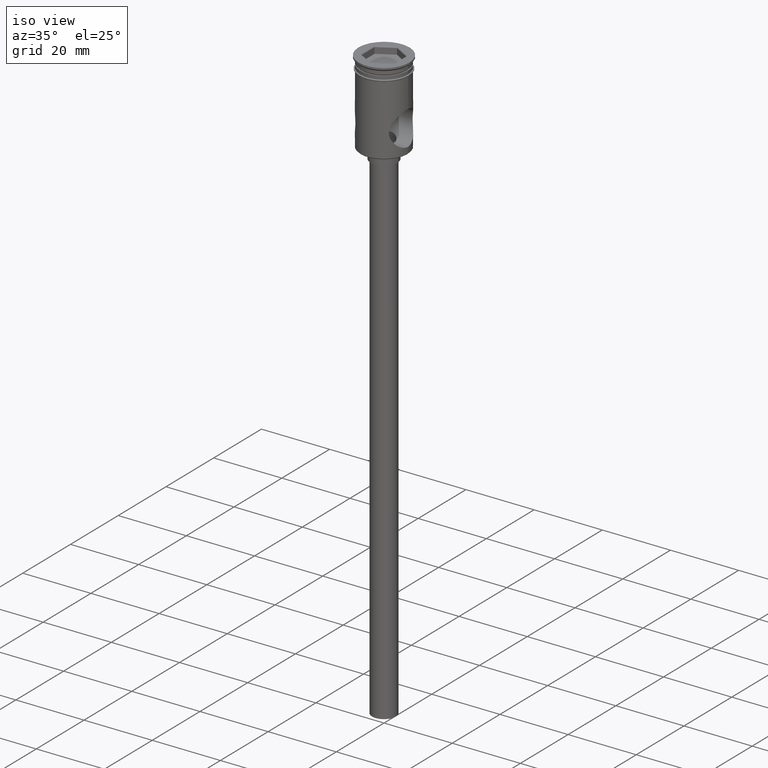
[diagram: clean part render]
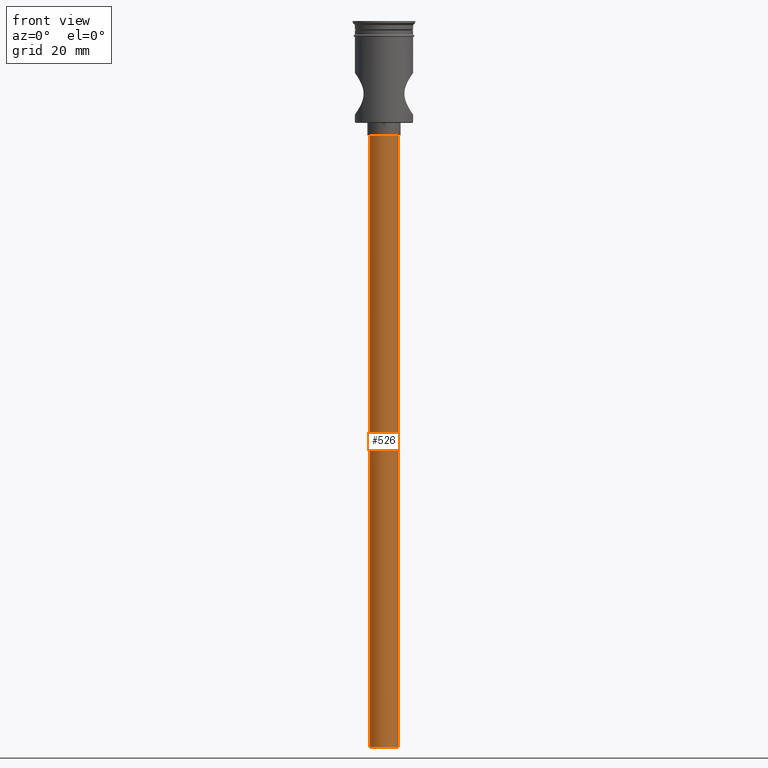
[diagram: tour spotlight — one face highlighted and labeled with its STEP entity id]
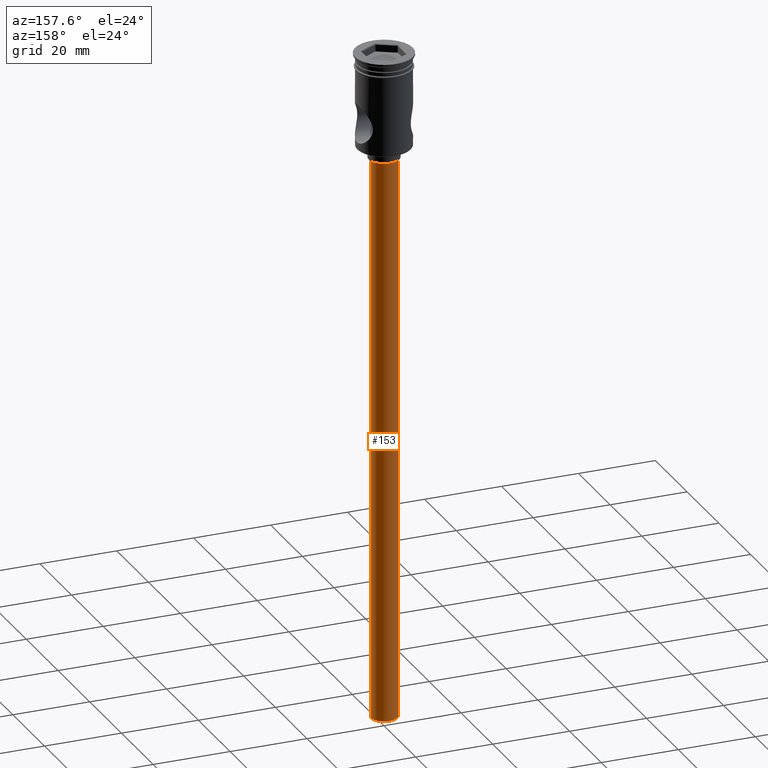
[diagram: tour spotlight — one face highlighted and labeled with its STEP entity id]
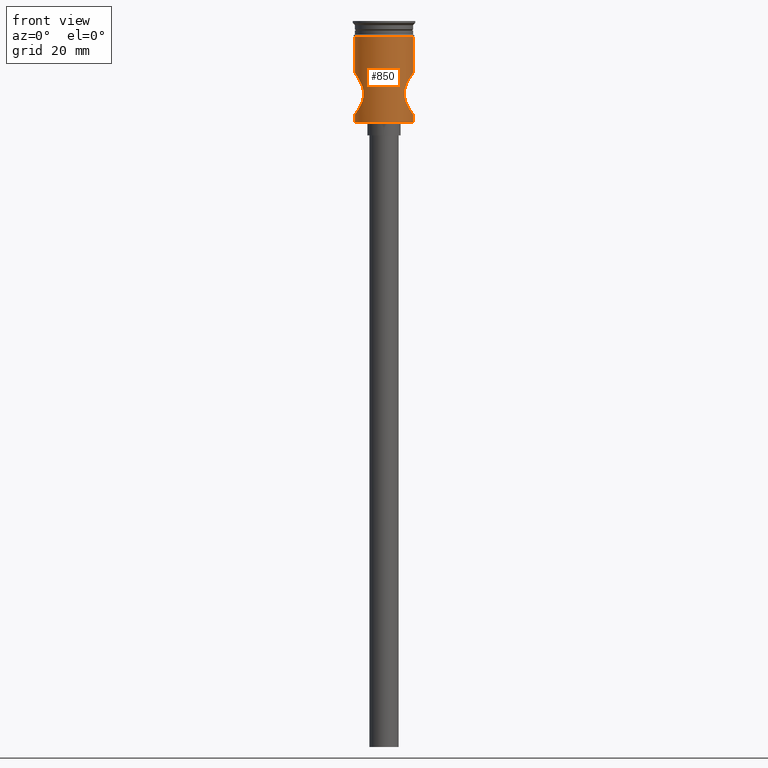
[diagram: tour spotlight — one face highlighted and labeled with its STEP entity id]
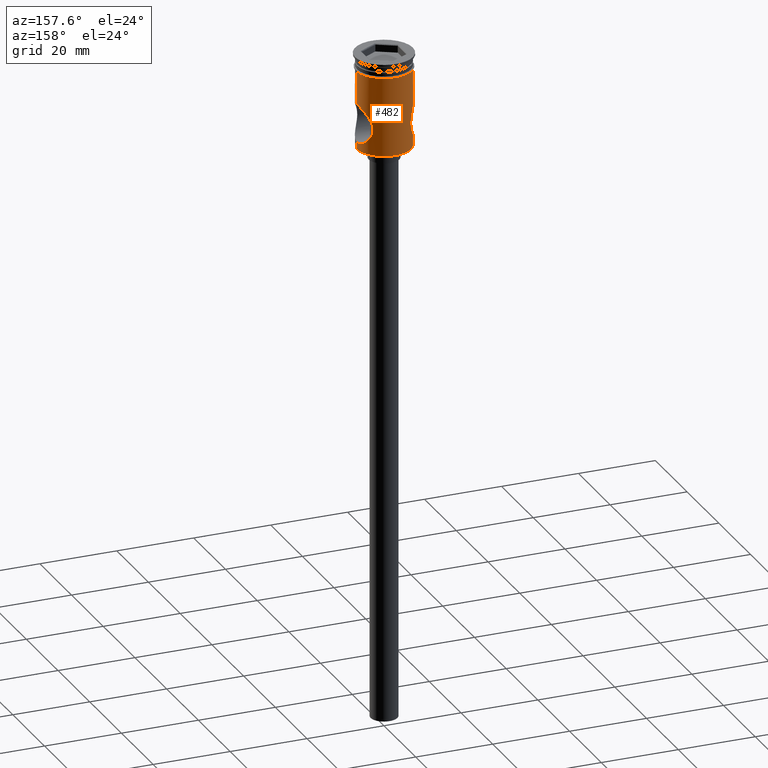
[diagram: tour spotlight — one face highlighted and labeled with its STEP entity id]
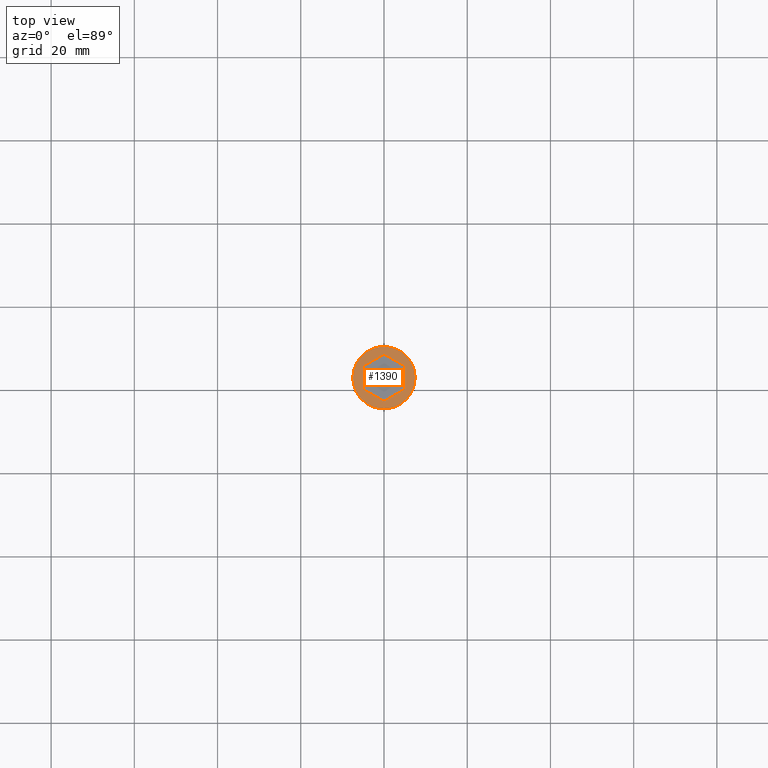
[diagram: tour spotlight — one face highlighted and labeled with its STEP entity id]
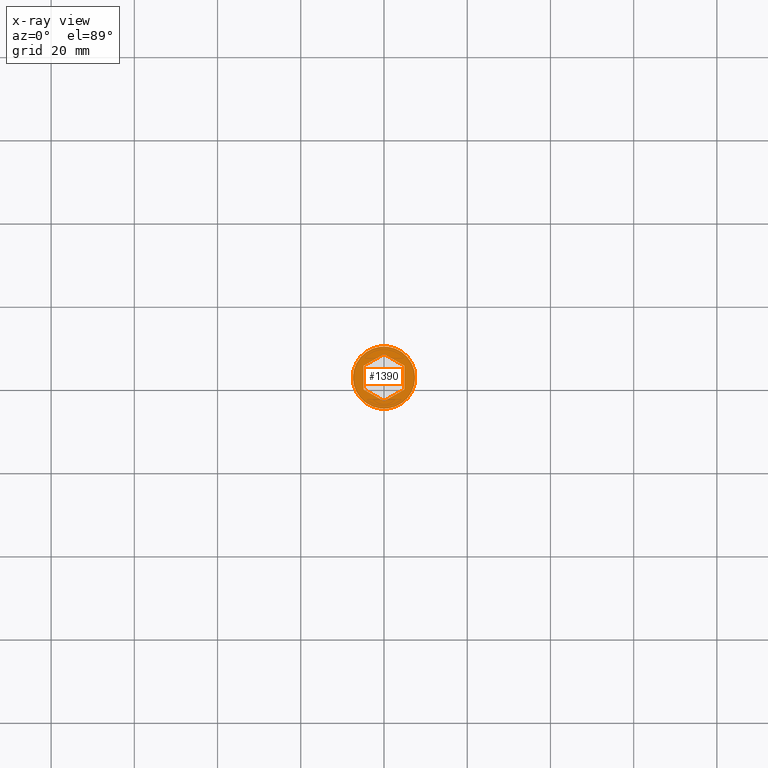
[diagram: x-ray of the same camera — body ghosted, this tour face saturated]
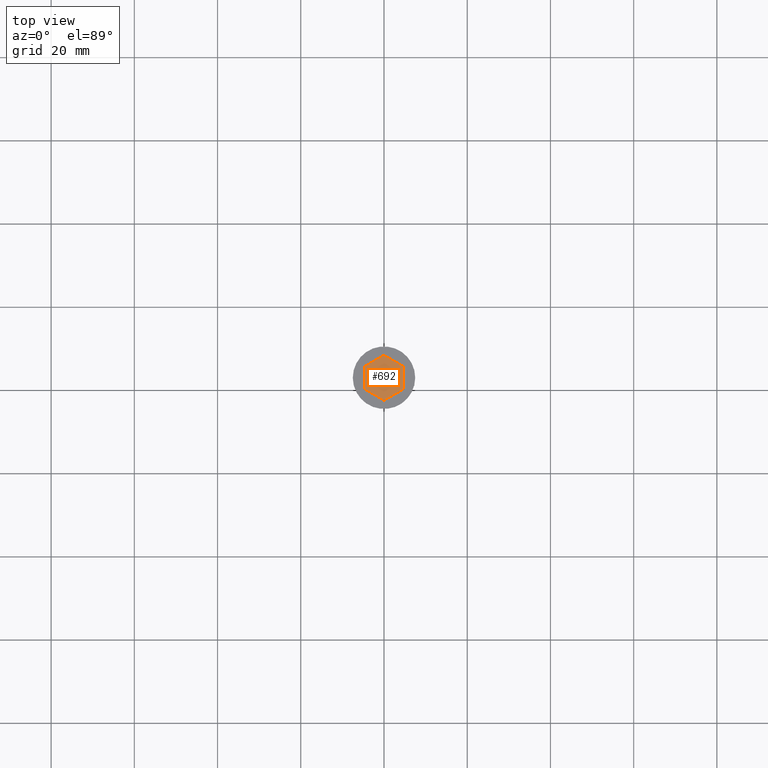
[diagram: tour spotlight — one face highlighted and labeled with its STEP entity id]
A machine part: a face-by-face anatomy tour. The part has 44 B-rep faces; the first image is the clean iso view, then the 6 largest visible faces are spotlighted one at a time (largest first), each with its STEP entity span.

Face 1 — front view, entity #526. In plain terms, the highlighted cylindrical surface (edge-blend (fillet) strip) has radius 3.5 mm, axis along (-0, -0, 1).
Definition (entity closure, byte-faithful):
#23 = EDGE_LOOP ( 'NONE', ( #1055, #514, #1124, #88 ) ) ;
#82 = AXIS2_PLACEMENT_3D ( 'NONE', #808, #703, #687 ) ;
#88 = ORIENTED_EDGE ( 'NONE', *, *, #1208, .T. ) ;
#146 = EDGE_CURVE ( 'NONE', #998, #1211, #327, .T. ) ;
#179 = AXIS2_PLACEMENT_3D ( 'NONE', #936, #1406, #928 ) ;
#240 = DIRECTION ( 'NONE',  ( 0.000000000000000000, 0.000000000000000000, -1.000000000000000000 ) ) ;
#291 = DIRECTION ( 'NONE',  ( -0.000000000000000000, -0.000000000000000000, 1.000000000000000000 ) ) ;
#299 = LINE ( 'NONE', #627, #1280 ) ;
#327 = CIRCLE ( 'NONE', #509, 3.500000000000000444 ) ;
#359 = CYLINDRICAL_SURFACE ( 'NONE', #82, 3.500000000000000444 ) ;
#472 = CARTESIAN_POINT ( 'NONE',  ( -3.500000000000000444, 4.286263797015737088E-16, -174.5000000000000000 ) ) ;
#509 = AXIS2_PLACEMENT_3D ( 'NONE', #1120, #240, #569 ) ;
#514 = ORIENTED_EDGE ( 'NONE', *, *, #146, .F. ) ;
#526 = ADVANCED_FACE ( 'NONE', ( #923 ), #359, .T. ) ;
#531 = CARTESIAN_POINT ( 'NONE',  ( 3.500000000000000444, 0.000000000000000000, -174.5000000000000000 ) ) ;
#569 = DIRECTION ( 'NONE',  ( -1.000000000000000000, 0.000000000000000000, 0.000000000000000000 ) ) ;
#594 = EDGE_CURVE ( 'NONE', #998, #1226, #894, .T. ) ;
#627 = CARTESIAN_POINT ( 'NONE',  ( -3.500000000000000444, 4.286263797015737088E-16, -174.5000000000000000 ) ) ;
#674 = DIRECTION ( 'NONE',  ( -0.000000000000000000, -0.000000000000000000, 1.000000000000000000 ) ) ;
#687 = DIRECTION ( 'NONE',  ( 1.000000000000000000, 0.000000000000000000, 0.000000000000000000 ) ) ;
#703 = DIRECTION ( 'NONE',  ( -0.000000000000000000, -0.000000000000000000, 1.000000000000000000 ) ) ;
#792 = CARTESIAN_POINT ( 'NONE',  ( 3.500000000000000444, 0.000000000000000000, -174.5000000000000000 ) ) ;
#808 = CARTESIAN_POINT ( 'NONE',  ( 0.000000000000000000, 0.000000000000000000, -174.5000000000000000 ) ) ;
#872 = CARTESIAN_POINT ( 'NONE',  ( -3.500000000000000444, 4.286263797015737088E-16, -27.50000000000000000 ) ) ;
#894 = LINE ( 'NONE', #792, #1350 ) ;
#923 = FACE_OUTER_BOUND ( 'NONE', #23, .T. ) ;
#928 = DIRECTION ( 'NONE',  ( -1.000000000000000000, 0.000000000000000000, 0.000000000000000000 ) ) ;
#936 = CARTESIAN_POINT ( 'NONE',  ( 0.000000000000000000, 0.000000000000000000, -27.50000000000000000 ) ) ;
#962 = VERTEX_POINT ( 'NONE', #872 ) ;
#998 = VERTEX_POINT ( 'NONE', #531 ) ;
#1055 = ORIENTED_EDGE ( 'NONE', *, *, #1434, .F. ) ;
#1120 = CARTESIAN_POINT ( 'NONE',  ( 0.000000000000000000, 0.000000000000000000, -174.5000000000000000 ) ) ;
#1124 = ORIENTED_EDGE ( 'NONE', *, *, #594, .T. ) ;
#1172 = CIRCLE ( 'NONE', #179, 3.500000000000000444 ) ;
#1208 = EDGE_CURVE ( 'NONE', #1226, #962, #1172, .T. ) ;
#1211 = VERTEX_POINT ( 'NONE', #472 ) ;
#1226 = VERTEX_POINT ( 'NONE', #1413 ) ;
#1280 = VECTOR ( 'NONE', #291, 1000.000000000000000 ) ;
#1350 = VECTOR ( 'NONE', #674, 1000.000000000000000 ) ;
#1406 = DIRECTION ( 'NONE',  ( 0.000000000000000000, 0.000000000000000000, -1.000000000000000000 ) ) ;
#1413 = CARTESIAN_POINT ( 'NONE',  ( 3.500000000000000444, 0.000000000000000000, -27.50000000000000000 ) ) ;
#1434 = EDGE_CURVE ( 'NONE', #1211, #962, #299, .T. ) ;

Face 2 — auxiliary view, entity #153. In plain terms, the highlighted cylindrical surface (edge-blend (fillet) strip) has radius 3.5 mm, axis along (-0, -0, 1).
Definition (entity closure, byte-faithful):
#28 = DIRECTION ( 'NONE',  ( 0.000000000000000000, 0.000000000000000000, -1.000000000000000000 ) ) ;
#69 = ORIENTED_EDGE ( 'NONE', *, *, #594, .F. ) ;
#101 = DIRECTION ( 'NONE',  ( 1.000000000000000000, 0.000000000000000000, 0.000000000000000000 ) ) ;
#153 = ADVANCED_FACE ( 'NONE', ( #799 ), #246, .T. ) ;
#246 = CYLINDRICAL_SURFACE ( 'NONE', #1071, 3.500000000000000444 ) ;
#291 = DIRECTION ( 'NONE',  ( -0.000000000000000000, -0.000000000000000000, 1.000000000000000000 ) ) ;
#299 = LINE ( 'NONE', #627, #1280 ) ;
#353 = ORIENTED_EDGE ( 'NONE', *, *, #1274, .F. ) ;
#379 = DIRECTION ( 'NONE',  ( -1.000000000000000000, 0.000000000000000000, 0.000000000000000000 ) ) ;
#401 = CIRCLE ( 'NONE', #1223, 3.500000000000000444 ) ;
#429 = DIRECTION ( 'NONE',  ( -1.000000000000000000, 0.000000000000000000, 0.000000000000000000 ) ) ;
#472 = CARTESIAN_POINT ( 'NONE',  ( -3.500000000000000444, 4.286263797015737088E-16, -174.5000000000000000 ) ) ;
#531 = CARTESIAN_POINT ( 'NONE',  ( 3.500000000000000444, 0.000000000000000000, -174.5000000000000000 ) ) ;
#534 = CARTESIAN_POINT ( 'NONE',  ( 0.000000000000000000, 0.000000000000000000, -27.50000000000000000 ) ) ;
#544 = ORIENTED_EDGE ( 'NONE', *, *, #1434, .T. ) ;
#573 = EDGE_CURVE ( 'NONE', #962, #1226, #401, .T. ) ;
#594 = EDGE_CURVE ( 'NONE', #998, #1226, #894, .T. ) ;
#627 = CARTESIAN_POINT ( 'NONE',  ( -3.500000000000000444, 4.286263797015737088E-16, -174.5000000000000000 ) ) ;
#674 = DIRECTION ( 'NONE',  ( -0.000000000000000000, -0.000000000000000000, 1.000000000000000000 ) ) ;
#702 = CARTESIAN_POINT ( 'NONE',  ( 0.000000000000000000, 0.000000000000000000, -174.5000000000000000 ) ) ;
#792 = CARTESIAN_POINT ( 'NONE',  ( 3.500000000000000444, 0.000000000000000000, -174.5000000000000000 ) ) ;
#799 = FACE_OUTER_BOUND ( 'NONE', #1162, .T. ) ;
#844 = CIRCLE ( 'NONE', #1458, 3.500000000000000444 ) ;
#872 = CARTESIAN_POINT ( 'NONE',  ( -3.500000000000000444, 4.286263797015737088E-16, -27.50000000000000000 ) ) ;
#894 = LINE ( 'NONE', #792, #1350 ) ;
#905 = DIRECTION ( 'NONE',  ( -0.000000000000000000, -0.000000000000000000, 1.000000000000000000 ) ) ;
#962 = VERTEX_POINT ( 'NONE', #872 ) ;
#998 = VERTEX_POINT ( 'NONE', #531 ) ;
#1071 = AXIS2_PLACEMENT_3D ( 'NONE', #1236, #905, #101 ) ;
#1162 = EDGE_LOOP ( 'NONE', ( #353, #544, #1177, #69 ) ) ;
#1177 = ORIENTED_EDGE ( 'NONE', *, *, #573, .T. ) ;
#1211 = VERTEX_POINT ( 'NONE', #472 ) ;
#1223 = AXIS2_PLACEMENT_3D ( 'NONE', #534, #1339, #429 ) ;
#1226 = VERTEX_POINT ( 'NONE', #1413 ) ;
#1236 = CARTESIAN_POINT ( 'NONE',  ( 0.000000000000000000, 0.000000000000000000, -174.5000000000000000 ) ) ;
#1274 = EDGE_CURVE ( 'NONE', #1211, #998, #844, .T. ) ;
#1280 = VECTOR ( 'NONE', #291, 1000.000000000000000 ) ;
#1339 = DIRECTION ( 'NONE',  ( 0.000000000000000000, 0.000000000000000000, -1.000000000000000000 ) ) ;
#1350 = VECTOR ( 'NONE', #674, 1000.000000000000000 ) ;
#1413 = CARTESIAN_POINT ( 'NONE',  ( 3.500000000000000444, 0.000000000000000000, -27.50000000000000000 ) ) ;
#1434 = EDGE_CURVE ( 'NONE', #1211, #962, #299, .T. ) ;
#1458 = AXIS2_PLACEMENT_3D ( 'NONE', #702, #28, #379 ) ;

Face 3 — front view, entity #850. In plain terms, the highlighted cylindrical surface (edge-blend (fillet) strip) has radius 7 mm, axis along (-0, -0, 1).
Definition (entity closure, byte-faithful):
#5 = ORIENTED_EDGE ( 'NONE', *, *, #1033, .T. ) ;
#7 = B_SPLINE_CURVE_WITH_KNOTS ( 'NONE', 3,
 ( #1198, #1309, #979, #764, #1435, #85, #285, #323, #1343, #182, #741, #1109, #426, #58, #1315, #634, #1217, #975, #194, #890, #1248, #608, #41, #1415, #1158, #1409, #389, #722, #373, #579, #595, #1037, #473, #250, #1050, #707, #20, #480, #822, #937, #1279, #1399 ),
 .UNSPECIFIED., .F., .F.,
 ( 4, 2, 2, 2, 2, 2, 2, 2, 2, 2, 2, 2, 2, 2, 2, 2, 2, 2, 2, 2, 4 ),
 ( 0.000000000000000000, 0.001017778397128055699, 0.002035556794256111399, 0.003053335191384167098, 0.004071113588512222797, 0.005088891985640278497, 0.006106670382768334196, 0.006615559581332362479, 0.007124448779896391630, 0.007633337978460419913, 0.008142227177024449064, 0.008651116375588475613, 0.009160005574152505631, 0.01017778397128055352, 0.01068667316984457834, 0.01119556236840860142, 0.01221334076553664411, 0.01323111916266468679, 0.01424889755979273122, 0.01526667595692077217, 0.01628445435404881486 ),
 .UNSPECIFIED. ) ;
#20 = CARTESIAN_POINT ( 'NONE',  ( -6.627237468456898206, -2.276106889563763946, -13.03576710784931514 ) ) ;
#24 = CARTESIAN_POINT ( 'NONE',  ( -6.999999999999996447, 8.572527594031468259E-16, 0.000000000000000000 ) ) ;
#25 = CARTESIAN_POINT ( 'NONE',  ( 5.162336326394759922, -4.730545921691760469, -15.84900793347695647 ) ) ;
#30 = CARTESIAN_POINT ( 'NONE',  ( 5.385323867458159164, -4.475062125113562495, -19.75326393182406903 ) ) ;
#41 = CARTESIAN_POINT ( 'NONE',  ( -4.908080539807011533, -4.991127287266563961, -17.15741302911732546 ) ) ;
#43 = CARTESIAN_POINT ( 'NONE',  ( 6.999999999999999112, -0.3397238778479505505, -12.50000000000000533 ) ) ;
#49 = CARTESIAN_POINT ( 'NONE',  ( -6.999999999999996447, 8.572533153570467989E-16, -12.50000000000000000 ) ) ;
#56 = AXIS2_PLACEMENT_3D ( 'NONE', #253, #711, #590 ) ;
#58 = CARTESIAN_POINT ( 'NONE',  ( -5.218822708204850613, -4.665928648188177874, -19.30420640014511591 ) ) ;
#64 = EDGE_CURVE ( 'NONE', #669, #171, #931, .T. ) ;
#85 = CARTESIAN_POINT ( 'NONE',  ( -6.629274812495740576, -2.269772407451148055, -21.96723436692712994 ) ) ;
#90 = CARTESIAN_POINT ( 'NONE',  ( 5.904538784229269588, -3.768631959499706863, -20.80097026480864031 ) ) ;
#94 = ORIENTED_EDGE ( 'NONE', *, *, #1493, .F. ) ;
#100 = CARTESIAN_POINT ( 'NONE',  ( -7.000000000000000000, 8.572527594031472204E-16, -3.799999999999998490 ) ) ;
#137 = CARTESIAN_POINT ( 'NONE',  ( 4.908461367085028115, -4.990754227678548816, -17.84806495844127383 ) ) ;
#154 = AXIS2_PLACEMENT_3D ( 'NONE', #862, #1232, #637 ) ;
#164 = CARTESIAN_POINT ( 'NONE',  ( 6.464316942199904936, -2.689506414539494905, -13.28192429162108112 ) ) ;
#171 = VERTEX_POINT ( 'NONE', #1136 ) ;
#182 = CARTESIAN_POINT ( 'NONE',  ( -5.901369065369745037, -3.773598239158957757, -20.79532828289721635 ) ) ;
#183 = ORIENTED_EDGE ( 'NONE', *, *, #1245, .F. ) ;
#194 = CARTESIAN_POINT ( 'NONE',  ( -4.943019484790466045, -4.956528279916297741, -18.17978386182895179 ) ) ;
#209 = CARTESIAN_POINT ( 'NONE',  ( 6.293637646572689093, -3.077855022031981580, -21.45331948693545954 ) ) ;
#212 = CARTESIAN_POINT ( 'NONE',  ( 4.934803760294868447, -4.965557229327412614, -16.82386648148100150 ) ) ;
#248 = CARTESIAN_POINT ( 'NONE',  ( 5.036472174957491887, -4.861708977790190289, -18.67976090952791779 ) ) ;
#250 = CARTESIAN_POINT ( 'NONE',  ( -6.163412594259888522, -3.328521687271349894, -13.75554919995812675 ) ) ;
#253 = CARTESIAN_POINT ( 'NONE',  ( 0.000000000000000000, 0.000000000000000000, -24.29999999999999361 ) ) ;
#257 = LINE ( 'NONE', #24, #760 ) ;
#268 = CARTESIAN_POINT ( 'NONE',  ( 6.999999999999996447, -5.559544561199393959E-22, -12.50000000000000000 ) ) ;
#278 = CARTESIAN_POINT ( 'NONE',  ( 6.624517184282109561, -2.266908297124829108, -13.04044276553849002 ) ) ;
#285 = CARTESIAN_POINT ( 'NONE',  ( -6.523396179854662691, -2.555366162349213877, -21.80976297051136470 ) ) ;
#289 = EDGE_CURVE ( 'NONE', #669, #848, #469, .T. ) ;
#294 = DIRECTION ( 'NONE',  ( -0.000000000000000000, -0.000000000000000000, 1.000000000000000000 ) ) ;
#304 = CARTESIAN_POINT ( 'NONE',  ( 6.999999999999995559, -0.3443248772558980542, -22.50000000000000000 ) ) ;
#320 = CARTESIAN_POINT ( 'NONE',  ( 5.510292512720397440, -4.322635034373780272, -20.03289028278534190 ) ) ;
#323 = CARTESIAN_POINT ( 'NONE',  ( -6.288925692808939871, -3.087718830034457795, -21.44587702701452514 ) ) ;
#347 = CARTESIAN_POINT ( 'NONE',  ( 0.000000000000000000, 0.000000000000000000, 0.000000000000000000 ) ) ;
#366 = CARTESIAN_POINT ( 'NONE',  ( 4.899114737268973840, -4.999867480858277702, -17.67548696206737446 ) ) ;
#373 = CARTESIAN_POINT ( 'NONE',  ( -5.388400174924766084, -4.469310144529878848, -15.25261112388847806 ) ) ;
#389 = CARTESIAN_POINT ( 'NONE',  ( -5.163543367690774488, -4.729261221067855736, -15.84511468902912590 ) ) ;
#397 = CARTESIAN_POINT ( 'NONE',  ( 6.673734349475702210, -2.118082564557161263, -12.96778522737479733 ) ) ;
#405 = CARTESIAN_POINT ( 'NONE',  ( 5.220660888952586731, -4.663868933387905535, -19.30946716320038448 ) ) ;
#416 = VERTEX_POINT ( 'NONE', #1197 ) ;
#426 = CARTESIAN_POINT ( 'NONE',  ( -5.383875121910168815, -4.476817073581178086, -19.74995831670789670 ) ) ;
#434 = ORIENTED_EDGE ( 'NONE', *, *, #519, .F. ) ;
#435 = FACE_OUTER_BOUND ( 'NONE', #1446, .T. ) ;
#469 = CIRCLE ( 'NONE', #56, 6.999999999999996447 ) ;
#473 = CARTESIAN_POINT ( 'NONE',  ( -5.901355755354761534, -3.773686748851627915, -14.20466136214932007 ) ) ;
#480 = CARTESIAN_POINT ( 'NONE',  ( -6.806176255248581164, -1.666404458266062649, -12.77420545626974224 ) ) ;
#485 = CARTESIAN_POINT ( 'NONE',  ( 5.067898708447169831, -4.829642785058294585, -16.16266470123420618 ) ) ;
#496 = DIRECTION ( 'NONE',  ( -0.000000000000000000, -0.000000000000000000, 1.000000000000000000 ) ) ;
#507 = CARTESIAN_POINT ( 'NONE',  ( 6.161707611671310758, -3.331633962589205744, -13.75836233797496533 ) ) ;
#519 = EDGE_CURVE ( 'NONE', #171, #798, #7, .T. ) ;
#549 = CARTESIAN_POINT ( 'NONE',  ( 6.525356721813722949, -2.550056080968596373, -21.81267208194016760 ) ) ;
#550 = LINE ( 'NONE', #849, #1104 ) ;
#579 = CARTESIAN_POINT ( 'NONE',  ( -5.511313949235637999, -4.316828484673398414, -14.97205977871709415 ) ) ;
#588 = CARTESIAN_POINT ( 'NONE',  ( 5.169488514657019529, -4.720270986420918469, -19.15718069384215738 ) ) ;
#590 = DIRECTION ( 'NONE',  ( -1.000000000000000000, 0.000000000000000000, 0.000000000000000000 ) ) ;
#595 = CARTESIAN_POINT ( 'NONE',  ( -5.574789878013862499, -4.234804902448966679, -14.83709141481580396 ) ) ;
#608 = CARTESIAN_POINT ( 'NONE',  ( -4.899085609211874193, -4.999896020448773015, -17.32678303492929217 ) ) ;
#634 = CARTESIAN_POINT ( 'NONE',  ( -5.075160898063482584, -4.821543316883922792, -18.83416791088078668 ) ) ;
#637 = DIRECTION ( 'NONE',  ( 1.000000000000000000, 0.000000000000000000, 0.000000000000000000 ) ) ;
#644 = EDGE_CURVE ( 'NONE', #757, #416, #940, .T. ) ;
#651 = EDGE_CURVE ( 'NONE', #757, #1085, #1046, .T. ) ;
#662 = CARTESIAN_POINT ( 'NONE',  ( 6.805936086033878674, -1.666627172151767367, -22.22542051994379975 ) ) ;
#667 = ORIENTED_EDGE ( 'NONE', *, *, #289, .T. ) ;
#669 = VERTEX_POINT ( 'NONE', #1394 ) ;
#670 = CARTESIAN_POINT ( 'NONE',  ( 6.999999999999996447, 0.000000000000000000, -24.29999999999999361 ) ) ;
#673 = CARTESIAN_POINT ( 'NONE',  ( 4.898713443770691178, -5.000260666815379729, -17.16047788894091752 ) ) ;
#688 = DIRECTION ( 'NONE',  ( -0.000000000000000000, -0.000000000000000000, 1.000000000000000000 ) ) ;
#704 = CARTESIAN_POINT ( 'NONE',  ( 5.077364955457301932, -4.819225539182824924, -18.84248696074795149 ) ) ;
#707 = CARTESIAN_POINT ( 'NONE',  ( -6.522179950175094554, -2.558034936992928277, -13.19213903168321522 ) ) ;
#711 = DIRECTION ( 'NONE',  ( -0.000000000000000000, -0.000000000000000000, 1.000000000000000000 ) ) ;
#717 = CARTESIAN_POINT ( 'NONE',  ( 5.381635726961874866, -4.479484118326246822, -15.25543733555521264 ) ) ;
#722 = CARTESIAN_POINT ( 'NONE',  ( -5.328862411543377142, -4.539851137495588773, -15.39859786766767336 ) ) ;
#733 = ORIENTED_EDGE ( 'NONE', *, *, #64, .F. ) ;
#734 = CARTESIAN_POINT ( 'NONE',  ( 6.806988922152785726, -1.662804102803706163, -12.77304955625404048 ) ) ;
#741 = CARTESIAN_POINT ( 'NONE',  ( -5.765831995741617533, -3.975245358282917696, -20.54897793578650678 ) ) ;
#750 = CARTESIAN_POINT ( 'NONE',  ( 6.999999999999996447, -5.559544561199393959E-22, -12.50000000000000000 ) ) ;
#757 = VERTEX_POINT ( 'NONE', #750 ) ;
#759 = CARTESIAN_POINT ( 'NONE',  ( 6.974619610468724140, -0.6823602827348922428, -22.46463889269961456 ) ) ;
#760 = VECTOR ( 'NONE', #813, 1000.000000000000000 ) ;
#764 = CARTESIAN_POINT ( 'NONE',  ( -6.878409767648492767, -1.341070845160087455, -22.32854432384573684 ) ) ;
#777 = VERTEX_POINT ( 'NONE', #100 ) ;
#779 = CARTESIAN_POINT ( 'NONE',  ( 6.629571276977945793, -2.268743445522608759, -21.96766699740016193 ) ) ;
#798 = VERTEX_POINT ( 'NONE', #49 ) ;
#802 = AXIS2_PLACEMENT_3D ( 'NONE', #347, #688, #1125 ) ;
#813 = DIRECTION ( 'NONE',  ( -0.000000000000000000, -0.000000000000000000, 1.000000000000000000 ) ) ;
#815 = CARTESIAN_POINT ( 'NONE',  ( -6.999999999999996447, 8.572527594031468259E-16, 0.000000000000000000 ) ) ;
#822 = CARTESIAN_POINT ( 'NONE',  ( -6.877389265331919077, -1.346411915329735587, -12.67290639567982424 ) ) ;
#829 = CARTESIAN_POINT ( 'NONE',  ( 4.943863480480452210, -4.955687100658114019, -18.18552340350770891 ) ) ;
#848 = VERTEX_POINT ( 'NONE', #670 ) ;
#849 = CARTESIAN_POINT ( 'NONE',  ( 6.999999999999996447, 0.000000000000000000, 0.000000000000000000 ) ) ;
#850 = ADVANCED_FACE ( 'NONE', ( #435 ), #1485, .T. ) ;
#862 = CARTESIAN_POINT ( 'NONE',  ( 0.000000000000000000, 0.000000000000000000, -3.799999999999998490 ) ) ;
#870 = ORIENTED_EDGE ( 'NONE', *, *, #644, .T. ) ;
#884 = CARTESIAN_POINT ( 'NONE',  ( 6.999999999999996447, 0.000000000000000000, -22.50000000000000355 ) ) ;
#890 = CARTESIAN_POINT ( 'NONE',  ( -4.907798977527274786, -4.991404953799127853, -17.83934536331389609 ) ) ;
#925 = DIRECTION ( 'NONE',  ( -0.000000000000000000, -0.000000000000000000, 1.000000000000000000 ) ) ;
#930 = CARTESIAN_POINT ( 'NONE',  ( 5.508043593449563957, -4.325402544629331381, -14.97211645318934004 ) ) ;
#931 = LINE ( 'NONE', #815, #956 ) ;
#937 = CARTESIAN_POINT ( 'NONE',  ( -6.974267267734871822, -0.6862246212768641218, -12.53585319719852720 ) ) ;
#940 = LINE ( 'NONE', #1296, #1049 ) ;
#951 = CARTESIAN_POINT ( 'NONE',  ( 6.975075911005133023, -0.6793982586713426253, -12.53471494170770306 ) ) ;
#956 = VECTOR ( 'NONE', #925, 1000.000000000000000 ) ;
#958 = CARTESIAN_POINT ( 'NONE',  ( 5.900022963542600252, -3.775732323944060553, -14.20705562262494759 ) ) ;
#975 = CARTESIAN_POINT ( 'NONE',  ( -4.968992574149714514, -4.930653397323763620, -18.34649837096316460 ) ) ;
#979 = CARTESIAN_POINT ( 'NONE',  ( -6.974683072853315124, -0.6817536040784990536, -22.46472792027995879 ) ) ;
#1013 = ORIENTED_EDGE ( 'NONE', *, *, #651, .F. ) ;
#1033 = EDGE_CURVE ( 'NONE', #848, #1085, #550, .T. ) ;
#1037 = CARTESIAN_POINT ( 'NONE',  ( -5.768304064841209389, -3.971660509004134809, -14.44639040140507724 ) ) ;
#1046 = B_SPLINE_CURVE_WITH_KNOTS ( 'NONE', 3,
 ( #268, #43, #951, #1416, #734, #397, #278, #1180, #164, #1064, #507, #958, #1428, #930, #717, #25, #485, #212, #673, #366, #137, #829, #1269, #248, #704, #588, #405, #30, #320, #1322, #90, #1227, #209, #549, #779, #662, #1114, #759, #304, #884 ),
 .UNSPECIFIED., .F., .F.,
 ( 4, 2, 2, 2, 2, 2, 2, 2, 2, 2, 2, 2, 2, 2, 2, 2, 2, 2, 2, 4 ),
 ( 0.01628445435404881486, 0.01730075665134460025, 0.01831705894864038217, 0.01882521009728827660, 0.01933336124593617103, 0.02034966354323195642, 0.02136596584052773834, 0.02238226813782352373, 0.02339857043511930912, 0.02441487273241509451, 0.02492302388106299241, 0.02543117502971088684, 0.02593932617835878474, 0.02644747732700668263, 0.02746377962430248537, 0.02848008192159828811, 0.02949638421889409085, 0.03051268651618989358, 0.03152898881348569632, 0.03254529111078149906 ),
 .UNSPECIFIED. ) ;
#1049 = VECTOR ( 'NONE', #496, 1000.000000000000000 ) ;
#1050 = CARTESIAN_POINT ( 'NONE',  ( -6.290874603390947506, -3.083386249848239835, -13.55108393410666956 ) ) ;
#1064 = CARTESIAN_POINT ( 'NONE',  ( 6.289754092268240449, -3.085829967940952656, -13.55283859579834527 ) ) ;
#1085 = VERTEX_POINT ( 'NONE', #1380 ) ;
#1104 = VECTOR ( 'NONE', #294, 1000.000000000000000 ) ;
#1109 = CARTESIAN_POINT ( 'NONE',  ( -5.507665137062537575, -4.325854713192930134, -20.02701862118371778 ) ) ;
#1114 = CARTESIAN_POINT ( 'NONE',  ( 6.878322084194203434, -1.341499001965813509, -22.32841954660989003 ) ) ;
#1125 = DIRECTION ( 'NONE',  ( 1.000000000000000000, 0.000000000000000000, 0.000000000000000000 ) ) ;
#1129 = CIRCLE ( 'NONE', #154, 6.999999999999999112 ) ;
#1136 = CARTESIAN_POINT ( 'NONE',  ( -6.999999999999996447, 0.000000000000000000, -22.50000000000000355 ) ) ;
#1158 = CARTESIAN_POINT ( 'NONE',  ( -4.969341922738349737, -4.930306376958238701, -16.65122617411555339 ) ) ;
#1180 = CARTESIAN_POINT ( 'NONE',  ( 6.519877710032068840, -2.552311853721904278, -13.19741610699314016 ) ) ;
#1197 = CARTESIAN_POINT ( 'NONE',  ( 6.999999999999999112, 0.000000000000000000, -3.799999999999998490 ) ) ;
#1198 = CARTESIAN_POINT ( 'NONE',  ( -6.999999999999996447, 0.000000000000000000, -22.50000000000000355 ) ) ;
#1217 = CARTESIAN_POINT ( 'NONE',  ( -5.035064757863625395, -4.863162860794926878, -18.67369050689208265 ) ) ;
#1227 = CARTESIAN_POINT ( 'NONE',  ( 6.165209272184617006, -3.325110483998857003, -21.24734997091469424 ) ) ;
#1232 = DIRECTION ( 'NONE',  ( -0.000000000000000000, -0.000000000000000000, 1.000000000000000000 ) ) ;
#1245 = EDGE_CURVE ( 'NONE', #798, #777, #257, .T. ) ;
#1248 = CARTESIAN_POINT ( 'NONE',  ( -4.898875233353443548, -5.000102145928885911, -17.66716118737664232 ) ) ;
#1269 = CARTESIAN_POINT ( 'NONE',  ( 4.969884412147624886, -4.929758116149196567, -18.35178336719908287 ) ) ;
#1279 = CARTESIAN_POINT ( 'NONE',  ( -6.999999999999997335, -0.3402173002877514896, -12.50000000000000178 ) ) ;
#1296 = CARTESIAN_POINT ( 'NONE',  ( 6.999999999999996447, 0.000000000000000000, 0.000000000000000000 ) ) ;
#1309 = CARTESIAN_POINT ( 'NONE',  ( -6.999999999999996447, -0.3448249822885355309, -22.50000000000000355 ) ) ;
#1315 = CARTESIAN_POINT ( 'NONE',  ( -5.167013818061234609, -4.722976424013229035, -19.14947799901278813 ) ) ;
#1322 = CARTESIAN_POINT ( 'NONE',  ( 5.771108096911676810, -3.967720825599827972, -20.55906820373875732 ) ) ;
#1343 = CARTESIAN_POINT ( 'NONE',  ( -6.162478002351688744, -3.330174978408510178, -21.24288214826860255 ) ) ;
#1380 = CARTESIAN_POINT ( 'NONE',  ( 6.999999999999996447, 0.000000000000000000, -22.50000000000000355 ) ) ;
#1394 = CARTESIAN_POINT ( 'NONE',  ( -6.999999999999996447, 8.572527594031468259E-16, -24.29999999999999361 ) ) ;
#1399 = CARTESIAN_POINT ( 'NONE',  ( -6.999999999999996447, 8.572533153570467989E-16, -12.50000000000000000 ) ) ;
#1409 = CARTESIAN_POINT ( 'NONE',  ( -5.069539922197811244, -4.827927654831068338, -16.15669568881665441 ) ) ;
#1415 = CARTESIAN_POINT ( 'NONE',  ( -4.943068801648156985, -4.956478286556077251, -16.82026444464511528 ) ) ;
#1416 = CARTESIAN_POINT ( 'NONE',  ( 6.877725454229275392, -1.345421322269137576, -12.67242512543099231 ) ) ;
#1428 = CARTESIAN_POINT ( 'NONE',  ( 5.766850669963372589, -3.973799787454027399, -14.44906282454845936 ) ) ;
#1435 = CARTESIAN_POINT ( 'NONE',  ( -6.806291652246979851, -1.665396429013261459, -22.22593952615893897 ) ) ;
#1446 = EDGE_LOOP ( 'NONE', ( #733, #667, #5, #1013, #870, #94, #183, #434 ) ) ;
#1485 = CYLINDRICAL_SURFACE ( 'NONE', #802, 6.999999999999996447 ) ;
#1493 = EDGE_CURVE ( 'NONE', #777, #416, #1129, .T. ) ;

Face 4 — auxiliary view, entity #482. In plain terms, the highlighted cylindrical surface (edge-blend (fillet) strip) has radius 7 mm, axis along (-0, -0, 1).
Definition (entity closure, byte-faithful):
#24 = CARTESIAN_POINT ( 'NONE',  ( -6.999999999999996447, 8.572527594031468259E-16, 0.000000000000000000 ) ) ;
#49 = CARTESIAN_POINT ( 'NONE',  ( -6.999999999999996447, 8.572533153570467989E-16, -12.50000000000000000 ) ) ;
#55 = CARTESIAN_POINT ( 'NONE',  ( 5.167013818061234609, 4.722976424013229035, -19.14947799901278813 ) ) ;
#63 = CARTESIAN_POINT ( 'NONE',  ( -6.806988922152785726, 1.662804102803706163, -12.77304955625404048 ) ) ;
#64 = EDGE_CURVE ( 'NONE', #669, #171, #931, .T. ) ;
#65 = CARTESIAN_POINT ( 'NONE',  ( 4.943019484790466045, 4.956528279916297741, -18.17978386182895179 ) ) ;
#75 = CARTESIAN_POINT ( 'NONE',  ( -6.629571276977945793, 2.268743445522608759, -21.96766699740016193 ) ) ;
#76 = CARTESIAN_POINT ( 'NONE',  ( 5.163543367690774488, 4.729261221067855736, -15.84511468902912590 ) ) ;
#79 = CARTESIAN_POINT ( 'NONE',  ( -6.974619610468724140, 0.6823602827348922428, -22.46463889269961456 ) ) ;
#80 = CARTESIAN_POINT ( 'NONE',  ( 6.999999999999996447, -5.559544561199393959E-22, -12.50000000000000000 ) ) ;
#100 = CARTESIAN_POINT ( 'NONE',  ( -7.000000000000000000, 8.572527594031472204E-16, -3.799999999999998490 ) ) ;
#113 = DIRECTION ( 'NONE',  ( 1.000000000000000000, 0.000000000000000000, 0.000000000000000000 ) ) ;
#131 = ORIENTED_EDGE ( 'NONE', *, *, #1033, .F. ) ;
#139 = ORIENTED_EDGE ( 'NONE', *, *, #1245, .T. ) ;
#162 = CARTESIAN_POINT ( 'NONE',  ( -4.934803760294868447, 4.965557229327412614, -16.82386648148100150 ) ) ;
#169 = CARTESIAN_POINT ( 'NONE',  ( -4.943863480480452210, 4.955687100658114019, -18.18552340350770891 ) ) ;
#170 = CARTESIAN_POINT ( 'NONE',  ( 6.999999999999996447, 0.3448249822885355309, -22.50000000000000355 ) ) ;
#171 = VERTEX_POINT ( 'NONE', #1136 ) ;
#191 = CARTESIAN_POINT ( 'NONE',  ( 6.163412594259888522, 3.328521687271349894, -13.75554919995812675 ) ) ;
#200 = CARTESIAN_POINT ( 'NONE',  ( 4.899085609211874193, 4.999896020448773015, -17.32678303492929217 ) ) ;
#227 = AXIS2_PLACEMENT_3D ( 'NONE', #800, #898, #1021 ) ;
#236 = B_SPLINE_CURVE_WITH_KNOTS ( 'NONE', 3,
 ( #1471, #170, #282, #631, #989, #973, #859, #315, #739, #423, #978, #1188, #1323, #1453, #55, #1313, #518, #1445, #65, #322, #867, #200, #768, #1336, #538, #524, #76, #418, #761, #1215, #964, #642, #305, #191, #1432, #1207, #747, #649, #1196, #772, #411, #80 ),
 .UNSPECIFIED., .F., .F.,
 ( 4, 2, 2, 2, 2, 2, 2, 2, 2, 2, 2, 2, 2, 2, 2, 2, 2, 2, 2, 2, 4 ),
 ( 0.000000000000000000, 0.001017778397128055699, 0.002035556794256111399, 0.003053335191384167098, 0.004071113588512222797, 0.005088891985640278497, 0.006106670382768334196, 0.006615559581332362479, 0.007124448779896391630, 0.007633337978460419913, 0.008142227177024449064, 0.008651116375588475613, 0.009160005574152505631, 0.01017778397128055352, 0.01068667316984457834, 0.01119556236840860142, 0.01221334076553664411, 0.01323111916266468679, 0.01424889755979273122, 0.01526667595692077217, 0.01628445435404881486 ),
 .UNSPECIFIED. ) ;
#255 = AXIS2_PLACEMENT_3D ( 'NONE', #784, #1247, #113 ) ;
#257 = LINE ( 'NONE', #24, #760 ) ;
#282 = CARTESIAN_POINT ( 'NONE',  ( 6.974683072853315124, 0.6817536040784990536, -22.46472792027995879 ) ) ;
#293 = CARTESIAN_POINT ( 'NONE',  ( -5.771108096911676810, 3.967720825599827972, -20.55906820373875732 ) ) ;
#294 = DIRECTION ( 'NONE',  ( -0.000000000000000000, -0.000000000000000000, 1.000000000000000000 ) ) ;
#303 = CARTESIAN_POINT ( 'NONE',  ( -6.165209272184617006, 3.325110483998857003, -21.24734997091469424 ) ) ;
#305 = CARTESIAN_POINT ( 'NONE',  ( 5.901355755354761534, 3.773686748851627915, -14.20466136214932007 ) ) ;
#315 = CARTESIAN_POINT ( 'NONE',  ( 6.288925692808939871, 3.087718830034457795, -21.44587702701452514 ) ) ;
#322 = CARTESIAN_POINT ( 'NONE',  ( 4.907798977527274786, 4.991404953799127853, -17.83934536331389609 ) ) ;
#329 = CIRCLE ( 'NONE', #1199, 6.999999999999996447 ) ;
#332 = ORIENTED_EDGE ( 'NONE', *, *, #644, .F. ) ;
#411 = CARTESIAN_POINT ( 'NONE',  ( 6.999999999999997335, 0.3402173002877514896, -12.50000000000000178 ) ) ;
#416 = VERTEX_POINT ( 'NONE', #1197 ) ;
#418 = CARTESIAN_POINT ( 'NONE',  ( 5.328862411543377142, 4.539851137495588773, -15.39859786766767336 ) ) ;
#422 = CARTESIAN_POINT ( 'NONE',  ( -6.464316942199904936, 2.689506414539494905, -13.28192429162108112 ) ) ;
#423 = CARTESIAN_POINT ( 'NONE',  ( 5.901369065369745037, 3.773598239158957757, -20.79532828289721635 ) ) ;
#482 = ADVANCED_FACE ( 'NONE', ( #879 ), #1349, .T. ) ;
#496 = DIRECTION ( 'NONE',  ( -0.000000000000000000, -0.000000000000000000, 1.000000000000000000 ) ) ;
#504 = CARTESIAN_POINT ( 'NONE',  ( -6.161707611671310758, 3.331633962589205744, -13.75836233797496533 ) ) ;
#516 = CARTESIAN_POINT ( 'NONE',  ( -5.900022963542600252, 3.775732323944060553, -14.20705562262494759 ) ) ;
#518 = CARTESIAN_POINT ( 'NONE',  ( 5.035064757863625395, 4.863162860794926878, -18.67369050689208265 ) ) ;
#524 = CARTESIAN_POINT ( 'NONE',  ( 5.069539922197811244, 4.827927654831068338, -16.15669568881665441 ) ) ;
#532 = EDGE_CURVE ( 'NONE', #848, #669, #329, .T. ) ;
#537 = CARTESIAN_POINT ( 'NONE',  ( -4.899114737268973840, 4.999867480858277702, -17.67548696206737446 ) ) ;
#538 = CARTESIAN_POINT ( 'NONE',  ( 4.969341922738349737, 4.930306376958238701, -16.65122617411555339 ) ) ;
#545 = CARTESIAN_POINT ( 'NONE',  ( 0.000000000000000000, 0.000000000000000000, -24.29999999999999361 ) ) ;
#550 = LINE ( 'NONE', #849, #1104 ) ;
#572 = B_SPLINE_CURVE_WITH_KNOTS ( 'NONE', 3,
 ( #1405, #1306, #738, #1299, #63, #648, #1444, #746, #422, #1205, #504, #516, #1195, #865, #640, #954, #1312, #162, #1187, #537, #1422, #169, #630, #616, #1462, #622, #731, #1069, #767, #293, #1081, #303, #1321, #1091, #75, #1213, #1097, #79, #987, #1113 ),
 .UNSPECIFIED., .F., .F.,
 ( 4, 2, 2, 2, 2, 2, 2, 2, 2, 2, 2, 2, 2, 2, 2, 2, 2, 2, 2, 4 ),
 ( 0.01628445435404881486, 0.01730075665134460025, 0.01831705894864038217, 0.01882521009728827660, 0.01933336124593617103, 0.02034966354323195642, 0.02136596584052773834, 0.02238226813782352373, 0.02339857043511930912, 0.02441487273241509451, 0.02492302388106299241, 0.02543117502971088684, 0.02593932617835878474, 0.02644747732700668263, 0.02746377962430248537, 0.02848008192159828811, 0.02949638421889409085, 0.03051268651618989358, 0.03152898881348569632, 0.03254529111078149906 ),
 .UNSPECIFIED. ) ;
#616 = CARTESIAN_POINT ( 'NONE',  ( -5.036472174957491887, 4.861708977790190289, -18.67976090952791779 ) ) ;
#622 = CARTESIAN_POINT ( 'NONE',  ( -5.169488514657019529, 4.720270986420918469, -19.15718069384215738 ) ) ;
#630 = CARTESIAN_POINT ( 'NONE',  ( -4.969884412147624886, 4.929758116149196567, -18.35178336719908287 ) ) ;
#631 = CARTESIAN_POINT ( 'NONE',  ( 6.878409767648492767, 1.341070845160087455, -22.32854432384573684 ) ) ;
#640 = CARTESIAN_POINT ( 'NONE',  ( -5.381635726961874866, 4.479484118326246822, -15.25543733555521264 ) ) ;
#642 = CARTESIAN_POINT ( 'NONE',  ( 5.768304064841209389, 3.971660509004134809, -14.44639040140507724 ) ) ;
#644 = EDGE_CURVE ( 'NONE', #757, #416, #940, .T. ) ;
#648 = CARTESIAN_POINT ( 'NONE',  ( -6.673734349475702210, 2.118082564557161263, -12.96778522737479733 ) ) ;
#649 = CARTESIAN_POINT ( 'NONE',  ( 6.806176255248581164, 1.666404458266062649, -12.77420545626974224 ) ) ;
#669 = VERTEX_POINT ( 'NONE', #1394 ) ;
#670 = CARTESIAN_POINT ( 'NONE',  ( 6.999999999999996447, 0.000000000000000000, -24.29999999999999361 ) ) ;
#672 = EDGE_CURVE ( 'NONE', #798, #171, #572, .T. ) ;
#731 = CARTESIAN_POINT ( 'NONE',  ( -5.220660888952586731, 4.663868933387905535, -19.30946716320038448 ) ) ;
#738 = CARTESIAN_POINT ( 'NONE',  ( -6.975075911005133023, 0.6793982586713426253, -12.53471494170770306 ) ) ;
#739 = CARTESIAN_POINT ( 'NONE',  ( 6.162478002351688744, 3.330174978408510178, -21.24288214826860255 ) ) ;
#746 = CARTESIAN_POINT ( 'NONE',  ( -6.519877710032068840, 2.552311853721904278, -13.19741610699314016 ) ) ;
#747 = CARTESIAN_POINT ( 'NONE',  ( 6.627237468456898206, 2.276106889563763946, -13.03576710784931514 ) ) ;
#750 = CARTESIAN_POINT ( 'NONE',  ( 6.999999999999996447, -5.559544561199393959E-22, -12.50000000000000000 ) ) ;
#757 = VERTEX_POINT ( 'NONE', #750 ) ;
#760 = VECTOR ( 'NONE', #813, 1000.000000000000000 ) ;
#761 = CARTESIAN_POINT ( 'NONE',  ( 5.388400174924766084, 4.469310144529878848, -15.25261112388847806 ) ) ;
#767 = CARTESIAN_POINT ( 'NONE',  ( -5.510292512720397440, 4.322635034373780272, -20.03289028278534190 ) ) ;
#768 = CARTESIAN_POINT ( 'NONE',  ( 4.908080539807011533, 4.991127287266563961, -17.15741302911732546 ) ) ;
#772 = CARTESIAN_POINT ( 'NONE',  ( 6.974267267734871822, 0.6862246212768641218, -12.53585319719852720 ) ) ;
#773 = ORIENTED_EDGE ( 'NONE', *, *, #1008, .F. ) ;
#777 = VERTEX_POINT ( 'NONE', #100 ) ;
#784 = CARTESIAN_POINT ( 'NONE',  ( 0.000000000000000000, 0.000000000000000000, 0.000000000000000000 ) ) ;
#798 = VERTEX_POINT ( 'NONE', #49 ) ;
#800 = CARTESIAN_POINT ( 'NONE',  ( 0.000000000000000000, 0.000000000000000000, -3.799999999999998490 ) ) ;
#813 = DIRECTION ( 'NONE',  ( -0.000000000000000000, -0.000000000000000000, 1.000000000000000000 ) ) ;
#815 = CARTESIAN_POINT ( 'NONE',  ( -6.999999999999996447, 8.572527594031468259E-16, 0.000000000000000000 ) ) ;
#825 = CIRCLE ( 'NONE', #227, 6.999999999999999112 ) ;
#848 = VERTEX_POINT ( 'NONE', #670 ) ;
#849 = CARTESIAN_POINT ( 'NONE',  ( 6.999999999999996447, 0.000000000000000000, 0.000000000000000000 ) ) ;
#855 = DIRECTION ( 'NONE',  ( -1.000000000000000000, 0.000000000000000000, 0.000000000000000000 ) ) ;
#859 = CARTESIAN_POINT ( 'NONE',  ( 6.523396179854662691, 2.555366162349213877, -21.80976297051136470 ) ) ;
#865 = CARTESIAN_POINT ( 'NONE',  ( -5.508043593449563957, 4.325402544629331381, -14.97211645318934004 ) ) ;
#867 = CARTESIAN_POINT ( 'NONE',  ( 4.898875233353443548, 5.000102145928885911, -17.66716118737664232 ) ) ;
#879 = FACE_OUTER_BOUND ( 'NONE', #1034, .T. ) ;
#898 = DIRECTION ( 'NONE',  ( -0.000000000000000000, -0.000000000000000000, 1.000000000000000000 ) ) ;
#925 = DIRECTION ( 'NONE',  ( -0.000000000000000000, -0.000000000000000000, 1.000000000000000000 ) ) ;
#931 = LINE ( 'NONE', #815, #956 ) ;
#940 = LINE ( 'NONE', #1296, #1049 ) ;
#954 = CARTESIAN_POINT ( 'NONE',  ( -5.162336326394759922, 4.730545921691760469, -15.84900793347695647 ) ) ;
#956 = VECTOR ( 'NONE', #925, 1000.000000000000000 ) ;
#964 = CARTESIAN_POINT ( 'NONE',  ( 5.574789878013862499, 4.234804902448966679, -14.83709141481580396 ) ) ;
#973 = CARTESIAN_POINT ( 'NONE',  ( 6.629274812495740576, 2.269772407451148055, -21.96723436692712994 ) ) ;
#978 = CARTESIAN_POINT ( 'NONE',  ( 5.765831995741617533, 3.975245358282917696, -20.54897793578650678 ) ) ;
#987 = CARTESIAN_POINT ( 'NONE',  ( -6.999999999999995559, 0.3443248772558980542, -22.50000000000000000 ) ) ;
#989 = CARTESIAN_POINT ( 'NONE',  ( 6.806291652246979851, 1.665396429013261459, -22.22593952615893897 ) ) ;
#1008 = EDGE_CURVE ( 'NONE', #1085, #757, #236, .T. ) ;
#1021 = DIRECTION ( 'NONE',  ( 1.000000000000000000, 0.000000000000000000, 0.000000000000000000 ) ) ;
#1033 = EDGE_CURVE ( 'NONE', #848, #1085, #550, .T. ) ;
#1034 = EDGE_LOOP ( 'NONE', ( #1466, #1067, #1450, #139, #1043, #332, #773, #131 ) ) ;
#1043 = ORIENTED_EDGE ( 'NONE', *, *, #1145, .F. ) ;
#1049 = VECTOR ( 'NONE', #496, 1000.000000000000000 ) ;
#1067 = ORIENTED_EDGE ( 'NONE', *, *, #64, .T. ) ;
#1069 = CARTESIAN_POINT ( 'NONE',  ( -5.385323867458159164, 4.475062125113562495, -19.75326393182406903 ) ) ;
#1081 = CARTESIAN_POINT ( 'NONE',  ( -5.904538784229269588, 3.768631959499706863, -20.80097026480864031 ) ) ;
#1085 = VERTEX_POINT ( 'NONE', #1380 ) ;
#1091 = CARTESIAN_POINT ( 'NONE',  ( -6.525356721813722949, 2.550056080968596373, -21.81267208194016760 ) ) ;
#1097 = CARTESIAN_POINT ( 'NONE',  ( -6.878322084194203434, 1.341499001965813509, -22.32841954660989003 ) ) ;
#1104 = VECTOR ( 'NONE', #294, 1000.000000000000000 ) ;
#1113 = CARTESIAN_POINT ( 'NONE',  ( -6.999999999999996447, 0.000000000000000000, -22.50000000000000355 ) ) ;
#1136 = CARTESIAN_POINT ( 'NONE',  ( -6.999999999999996447, 0.000000000000000000, -22.50000000000000355 ) ) ;
#1145 = EDGE_CURVE ( 'NONE', #416, #777, #825, .T. ) ;
#1187 = CARTESIAN_POINT ( 'NONE',  ( -4.898713443770691178, 5.000260666815379729, -17.16047788894091752 ) ) ;
#1188 = CARTESIAN_POINT ( 'NONE',  ( 5.507665137062537575, 4.325854713192930134, -20.02701862118371778 ) ) ;
#1195 = CARTESIAN_POINT ( 'NONE',  ( -5.766850669963372589, 3.973799787454027399, -14.44906282454845936 ) ) ;
#1196 = CARTESIAN_POINT ( 'NONE',  ( 6.877389265331919077, 1.346411915329735587, -12.67290639567982424 ) ) ;
#1197 = CARTESIAN_POINT ( 'NONE',  ( 6.999999999999999112, 0.000000000000000000, -3.799999999999998490 ) ) ;
#1199 = AXIS2_PLACEMENT_3D ( 'NONE', #545, #1224, #855 ) ;
#1205 = CARTESIAN_POINT ( 'NONE',  ( -6.289754092268240449, 3.085829967940952656, -13.55283859579834527 ) ) ;
#1207 = CARTESIAN_POINT ( 'NONE',  ( 6.522179950175094554, 2.558034936992928277, -13.19213903168321522 ) ) ;
#1213 = CARTESIAN_POINT ( 'NONE',  ( -6.805936086033878674, 1.666627172151767367, -22.22542051994379975 ) ) ;
#1215 = CARTESIAN_POINT ( 'NONE',  ( 5.511313949235637999, 4.316828484673398414, -14.97205977871709415 ) ) ;
#1224 = DIRECTION ( 'NONE',  ( -0.000000000000000000, -0.000000000000000000, 1.000000000000000000 ) ) ;
#1245 = EDGE_CURVE ( 'NONE', #798, #777, #257, .T. ) ;
#1247 = DIRECTION ( 'NONE',  ( -0.000000000000000000, -0.000000000000000000, 1.000000000000000000 ) ) ;
#1296 = CARTESIAN_POINT ( 'NONE',  ( 6.999999999999996447, 0.000000000000000000, 0.000000000000000000 ) ) ;
#1299 = CARTESIAN_POINT ( 'NONE',  ( -6.877725454229275392, 1.345421322269137576, -12.67242512543099231 ) ) ;
#1306 = CARTESIAN_POINT ( 'NONE',  ( -6.999999999999999112, 0.3397238778479505505, -12.50000000000000533 ) ) ;
#1312 = CARTESIAN_POINT ( 'NONE',  ( -5.067898708447169831, 4.829642785058294585, -16.16266470123420618 ) ) ;
#1313 = CARTESIAN_POINT ( 'NONE',  ( 5.075160898063482584, 4.821543316883922792, -18.83416791088078668 ) ) ;
#1321 = CARTESIAN_POINT ( 'NONE',  ( -6.293637646572689093, 3.077855022031981580, -21.45331948693545954 ) ) ;
#1323 = CARTESIAN_POINT ( 'NONE',  ( 5.383875121910168815, 4.476817073581178086, -19.74995831670789670 ) ) ;
#1336 = CARTESIAN_POINT ( 'NONE',  ( 4.943068801648156985, 4.956478286556077251, -16.82026444464511528 ) ) ;
#1349 = CYLINDRICAL_SURFACE ( 'NONE', #255, 6.999999999999996447 ) ;
#1380 = CARTESIAN_POINT ( 'NONE',  ( 6.999999999999996447, 0.000000000000000000, -22.50000000000000355 ) ) ;
#1394 = CARTESIAN_POINT ( 'NONE',  ( -6.999999999999996447, 8.572527594031468259E-16, -24.29999999999999361 ) ) ;
#1405 = CARTESIAN_POINT ( 'NONE',  ( -6.999999999999996447, 8.572533153570467989E-16, -12.50000000000000000 ) ) ;
#1422 = CARTESIAN_POINT ( 'NONE',  ( -4.908461367085028115, 4.990754227678548816, -17.84806495844127383 ) ) ;
#1432 = CARTESIAN_POINT ( 'NONE',  ( 6.290874603390947506, 3.083386249848239835, -13.55108393410666956 ) ) ;
#1444 = CARTESIAN_POINT ( 'NONE',  ( -6.624517184282109561, 2.266908297124829108, -13.04044276553849002 ) ) ;
#1445 = CARTESIAN_POINT ( 'NONE',  ( 4.968992574149714514, 4.930653397323763620, -18.34649837096316460 ) ) ;
#1450 = ORIENTED_EDGE ( 'NONE', *, *, #672, .F. ) ;
#1453 = CARTESIAN_POINT ( 'NONE',  ( 5.218822708204850613, 4.665928648188177874, -19.30420640014511591 ) ) ;
#1462 = CARTESIAN_POINT ( 'NONE',  ( -5.077364955457301932, 4.819225539182824924, -18.84248696074795149 ) ) ;
#1466 = ORIENTED_EDGE ( 'NONE', *, *, #532, .T. ) ;
#1471 = CARTESIAN_POINT ( 'NONE',  ( 6.999999999999996447, 0.000000000000000000, -22.50000000000000355 ) ) ;

Face 5 — top view, entity #1390. An x-ray twin of the same camera follows (body ghosted, this face saturated) — the face is partly hidden behind the body. In plain terms, the highlighted planar face has unit normal (0, -0, 1).
Definition (entity closure, byte-faithful):
#102 = LINE ( 'NONE', #118, #866 ) ;
#104 = VECTOR ( 'NONE', #968, 1000.000000000000000 ) ;
#118 = CARTESIAN_POINT ( 'NONE',  ( -0.09999999999999770184, 5.600297611139364307, 0.000000000000000000 ) ) ;
#132 = VECTOR ( 'NONE', #193, 1000.000000000000114 ) ;
#174 = FACE_BOUND ( 'NONE', #456, .T. ) ;
#180 = CARTESIAN_POINT ( 'NONE',  ( 0.000000000000000000, 0.000000000000000000, 0.000000000000000000 ) ) ;
#193 = DIRECTION ( 'NONE',  ( 0.8660254037844385966, -0.5000000000000001110, 0.000000000000000000 ) ) ;
#197 = ORIENTED_EDGE ( 'NONE', *, *, #414, .T. ) ;
#202 = VECTOR ( 'NONE', #1216, 999.9999999999998863 ) ;
#211 = CARTESIAN_POINT ( 'NONE',  ( -3.203600579260160317E-16, -5.658032638058326569, 0.000000000000000000 ) ) ;
#217 = EDGE_CURVE ( 'NONE', #1438, #819, #625, .T. ) ;
#219 = DIRECTION ( 'NONE',  ( 0.000000000000000000, -0.000000000000000000, 1.000000000000000000 ) ) ;
#230 = AXIS2_PLACEMENT_3D ( 'NONE', #521, #744, #1440 ) ;
#264 = CARTESIAN_POINT ( 'NONE',  ( 0.09999999999999630018, -5.600297611139365195, 0.000000000000000000 ) ) ;
#288 = CARTESIAN_POINT ( 'NONE',  ( -4.899999999999994138, 2.829016319029163729, 0.000000000000000000 ) ) ;
#296 = CARTESIAN_POINT ( 'NONE',  ( 4.899999999999994138, -2.829016319029163729, 0.000000000000000000 ) ) ;
#298 = ORIENTED_EDGE ( 'NONE', *, *, #1392, .T. ) ;
#309 = LINE ( 'NONE', #433, #202 ) ;
#361 = EDGE_CURVE ( 'NONE', #508, #1438, #309, .T. ) ;
#371 = CARTESIAN_POINT ( 'NONE',  ( 4.899999999999994138, -2.713546265191241869, 0.000000000000000000 ) ) ;
#402 = ORIENTED_EDGE ( 'NONE', *, *, #361, .T. ) ;
#414 = EDGE_CURVE ( 'NONE', #494, #1423, #617, .T. ) ;
#428 = EDGE_CURVE ( 'NONE', #464, #826, #841, .T. ) ;
#433 = CARTESIAN_POINT ( 'NONE',  ( -4.799999999999996270, -2.886751345948123770, 0.000000000000000000 ) ) ;
#445 = DIRECTION ( 'NONE',  ( 1.000000000000000000, 0.000000000000000000, 0.000000000000000000 ) ) ;
#456 = EDGE_LOOP ( 'NONE', ( #402, #615, #1148, #197, #645, #607 ) ) ;
#463 = CARTESIAN_POINT ( 'NONE',  ( 7.500000000000000000, 0.000000000000000000, 0.000000000000000000 ) ) ;
#464 = VERTEX_POINT ( 'NONE', #997 ) ;
#493 = VECTOR ( 'NONE', #728, 1000.000000000000000 ) ;
#494 = VERTEX_POINT ( 'NONE', #1230 ) ;
#508 = VERTEX_POINT ( 'NONE', #211 ) ;
#511 = PLANE ( 'NONE',  #1011 ) ;
#521 = CARTESIAN_POINT ( 'NONE',  ( 0.000000000000000000, 0.000000000000000000, 0.000000000000000000 ) ) ;
#577 = DIRECTION ( 'NONE',  ( 0.8660254037844387076, 0.4999999999999998890, 0.000000000000000000 ) ) ;
#597 = ORIENTED_EDGE ( 'NONE', *, *, #428, .T. ) ;
#607 = ORIENTED_EDGE ( 'NONE', *, *, #1357, .T. ) ;
#615 = ORIENTED_EDGE ( 'NONE', *, *, #217, .T. ) ;
#617 = LINE ( 'NONE', #748, #132 ) ;
#625 = LINE ( 'NONE', #1076, #104 ) ;
#645 = ORIENTED_EDGE ( 'NONE', *, *, #1282, .T. ) ;
#650 = DIRECTION ( 'NONE',  ( -0.000000000000000000, -0.000000000000000000, 1.000000000000000000 ) ) ;
#685 = CIRCLE ( 'NONE', #230, 7.500000000000000000 ) ;
#723 = DIRECTION ( 'NONE',  ( -0.8660254037844387076, -0.4999999999999998890, 0.000000000000000000 ) ) ;
#728 = DIRECTION ( 'NONE',  ( -1.598207019933148115E-16, -1.000000000000000000, 0.000000000000000000 ) ) ;
#744 = DIRECTION ( 'NONE',  ( -0.000000000000000000, -0.000000000000000000, 1.000000000000000000 ) ) ;
#748 = CARTESIAN_POINT ( 'NONE',  ( 4.799999999999996270, 2.886751345948122882, 0.000000000000000000 ) ) ;
#751 = VERTEX_POINT ( 'NONE', #296 ) ;
#785 = CARTESIAN_POINT ( 'NONE',  ( 0.000000000000000000, 0.000000000000000000, 0.000000000000000000 ) ) ;
#819 = VERTEX_POINT ( 'NONE', #288 ) ;
#826 = VERTEX_POINT ( 'NONE', #463 ) ;
#828 = LINE ( 'NONE', #371, #493 ) ;
#841 = CIRCLE ( 'NONE', #1424, 7.500000000000000000 ) ;
#866 = VECTOR ( 'NONE', #577, 1000.000000000000000 ) ;
#888 = VECTOR ( 'NONE', #723, 1000.000000000000000 ) ;
#968 = DIRECTION ( 'NONE',  ( 0.000000000000000000, 1.000000000000000000, 0.000000000000000000 ) ) ;
#970 = EDGE_LOOP ( 'NONE', ( #298, #597 ) ) ;
#997 = CARTESIAN_POINT ( 'NONE',  ( -7.500000000000000000, 9.184850993605147944E-16, 0.000000000000000000 ) ) ;
#1011 = AXIS2_PLACEMENT_3D ( 'NONE', #785, #219, #445 ) ;
#1076 = CARTESIAN_POINT ( 'NONE',  ( -4.899999999999994138, 2.713546265191240536, 0.000000000000000000 ) ) ;
#1100 = DIRECTION ( 'NONE',  ( 1.000000000000000000, 0.000000000000000000, 0.000000000000000000 ) ) ;
#1140 = EDGE_CURVE ( 'NONE', #819, #494, #102, .T. ) ;
#1148 = ORIENTED_EDGE ( 'NONE', *, *, #1140, .T. ) ;
#1201 = CARTESIAN_POINT ( 'NONE',  ( 4.899999999999995026, 2.829016319029161508, 0.000000000000000000 ) ) ;
#1216 = DIRECTION ( 'NONE',  ( -0.8660254037844385966, 0.5000000000000002220, 0.000000000000000000 ) ) ;
#1230 = CARTESIAN_POINT ( 'NONE',  ( -7.915723921244255173E-16, 5.658032638058325681, 0.000000000000000000 ) ) ;
#1282 = EDGE_CURVE ( 'NONE', #1423, #751, #828, .T. ) ;
#1293 = LINE ( 'NONE', #264, #888 ) ;
#1310 = FACE_OUTER_BOUND ( 'NONE', #970, .T. ) ;
#1357 = EDGE_CURVE ( 'NONE', #751, #508, #1293, .T. ) ;
#1390 = ADVANCED_FACE ( 'NONE', ( #174, #1310 ), #511, .T. ) ;
#1392 = EDGE_CURVE ( 'NONE', #826, #464, #685, .T. ) ;
#1423 = VERTEX_POINT ( 'NONE', #1201 ) ;
#1424 = AXIS2_PLACEMENT_3D ( 'NONE', #180, #650, #1100 ) ;
#1438 = VERTEX_POINT ( 'NONE', #1451 ) ;
#1440 = DIRECTION ( 'NONE',  ( 1.000000000000000000, 0.000000000000000000, 0.000000000000000000 ) ) ;
#1451 = CARTESIAN_POINT ( 'NONE',  ( -4.899999999999994138, -2.829016319029162840, 0.000000000000000000 ) ) ;

Face 6 — top view, entity #692. In plain terms, the highlighted planar face has unit normal (-0, 0, 1).
Definition (entity closure, byte-faithful):
#6 = DIRECTION ( 'NONE',  ( 0.000000000000000000, -1.000000000000000000, 0.000000000000000000 ) ) ;
#109 = CARTESIAN_POINT ( 'NONE',  ( 0.000000000000000000, 0.000000000000000000, -2.000000000000000000 ) ) ;
#147 = VERTEX_POINT ( 'NONE', #788 ) ;
#173 = CARTESIAN_POINT ( 'NONE',  ( 4.699999999999999289, 2.713546265191240092, -2.000000000000000000 ) ) ;
#186 = CARTESIAN_POINT ( 'NONE',  ( -8.673617379884035472E-16, -5.427092530382482849, -2.000000000000000000 ) ) ;
#189 = DIRECTION ( 'NONE',  ( 0.8660254037844385966, 0.4999999999999998890, 0.000000000000000000 ) ) ;
#206 = EDGE_CURVE ( 'NONE', #462, #1304, #1192, .T. ) ;
#218 = CARTESIAN_POINT ( 'NONE',  ( 4.699999999999999289, 2.713546265191240092, -2.000000000000000000 ) ) ;
#229 = ORIENTED_EDGE ( 'NONE', *, *, #206, .T. ) ;
#260 = DIRECTION ( 'NONE',  ( 1.598207019933148115E-16, 1.000000000000000000, 0.000000000000000000 ) ) ;
#276 = LINE ( 'NONE', #1449, #1030 ) ;
#302 = EDGE_CURVE ( 'NONE', #147, #1484, #407, .T. ) ;
#342 = FACE_OUTER_BOUND ( 'NONE', #1059, .T. ) ;
#365 = EDGE_CURVE ( 'NONE', #1484, #522, #276, .T. ) ;
#380 = VECTOR ( 'NONE', #6, 1000.000000000000000 ) ;
#384 = CARTESIAN_POINT ( 'NONE',  ( 4.699999999999998401, -2.713546265191241869, -2.000000000000000000 ) ) ;
#400 = CARTESIAN_POINT ( 'NONE',  ( -4.699999999999999289, 2.713546265191240536, -2.000000000000000000 ) ) ;
#407 = LINE ( 'NONE', #1464, #1007 ) ;
#431 = DIRECTION ( 'NONE',  ( 1.000000000000000000, 0.000000000000000000, 0.000000000000000000 ) ) ;
#441 = DIRECTION ( 'NONE',  ( -0.8660254037844385966, -0.4999999999999998890, 0.000000000000000000 ) ) ;
#462 = VERTEX_POINT ( 'NONE', #218 ) ;
#503 = ORIENTED_EDGE ( 'NONE', *, *, #365, .T. ) ;
#522 = VERTEX_POINT ( 'NONE', #1288 ) ;
#558 = AXIS2_PLACEMENT_3D ( 'NONE', #109, #564, #431 ) ;
#564 = DIRECTION ( 'NONE',  ( -0.000000000000000000, 0.000000000000000000, 1.000000000000000000 ) ) ;
#565 = CARTESIAN_POINT ( 'NONE',  ( -4.699999999999999289, 2.713546265191240536, -2.000000000000000000 ) ) ;
#621 = ORIENTED_EDGE ( 'NONE', *, *, #641, .T. ) ;
#626 = VECTOR ( 'NONE', #993, 1000.000000000000227 ) ;
#641 = EDGE_CURVE ( 'NONE', #522, #462, #1160, .T. ) ;
#692 = ADVANCED_FACE ( 'NONE', ( #342 ), #1243, .T. ) ;
#788 = CARTESIAN_POINT ( 'NONE',  ( -4.699999999999999289, -2.713546265191241424, -2.000000000000000000 ) ) ;
#795 = LINE ( 'NONE', #565, #380 ) ;
#993 = DIRECTION ( 'NONE',  ( -0.8660254037844385966, 0.5000000000000000000, 0.000000000000000000 ) ) ;
#1007 = VECTOR ( 'NONE', #1433, 1000.000000000000000 ) ;
#1017 = LINE ( 'NONE', #1115, #1351 ) ;
#1020 = ORIENTED_EDGE ( 'NONE', *, *, #1141, .T. ) ;
#1030 = VECTOR ( 'NONE', #189, 1000.000000000000227 ) ;
#1047 = CARTESIAN_POINT ( 'NONE',  ( 0.000000000000000000, 5.427092530382481073, -2.000000000000000000 ) ) ;
#1059 = EDGE_LOOP ( 'NONE', ( #229, #1131, #1020, #1200, #503, #621 ) ) ;
#1115 = CARTESIAN_POINT ( 'NONE',  ( 0.000000000000000000, 5.427092530382481073, -2.000000000000000000 ) ) ;
#1131 = ORIENTED_EDGE ( 'NONE', *, *, #1149, .T. ) ;
#1141 = EDGE_CURVE ( 'NONE', #1393, #147, #795, .T. ) ;
#1149 = EDGE_CURVE ( 'NONE', #1304, #1393, #1017, .T. ) ;
#1160 = LINE ( 'NONE', #384, #1482 ) ;
#1192 = LINE ( 'NONE', #173, #626 ) ;
#1200 = ORIENTED_EDGE ( 'NONE', *, *, #302, .T. ) ;
#1243 = PLANE ( 'NONE',  #558 ) ;
#1288 = CARTESIAN_POINT ( 'NONE',  ( 4.699999999999998401, -2.713546265191241869, -2.000000000000000000 ) ) ;
#1304 = VERTEX_POINT ( 'NONE', #1047 ) ;
#1351 = VECTOR ( 'NONE', #441, 1000.000000000000227 ) ;
#1393 = VERTEX_POINT ( 'NONE', #400 ) ;
#1433 = DIRECTION ( 'NONE',  ( 0.8660254037844385966, -0.5000000000000001110, 0.000000000000000000 ) ) ;
#1449 = CARTESIAN_POINT ( 'NONE',  ( -8.673617379884035472E-16, -5.427092530382482849, -2.000000000000000000 ) ) ;
#1464 = CARTESIAN_POINT ( 'NONE',  ( -4.699999999999999289, -2.713546265191241424, -2.000000000000000000 ) ) ;
#1482 = VECTOR ( 'NONE', #260, 1000.000000000000000 ) ;
#1484 = VERTEX_POINT ( 'NONE', #186 ) ;